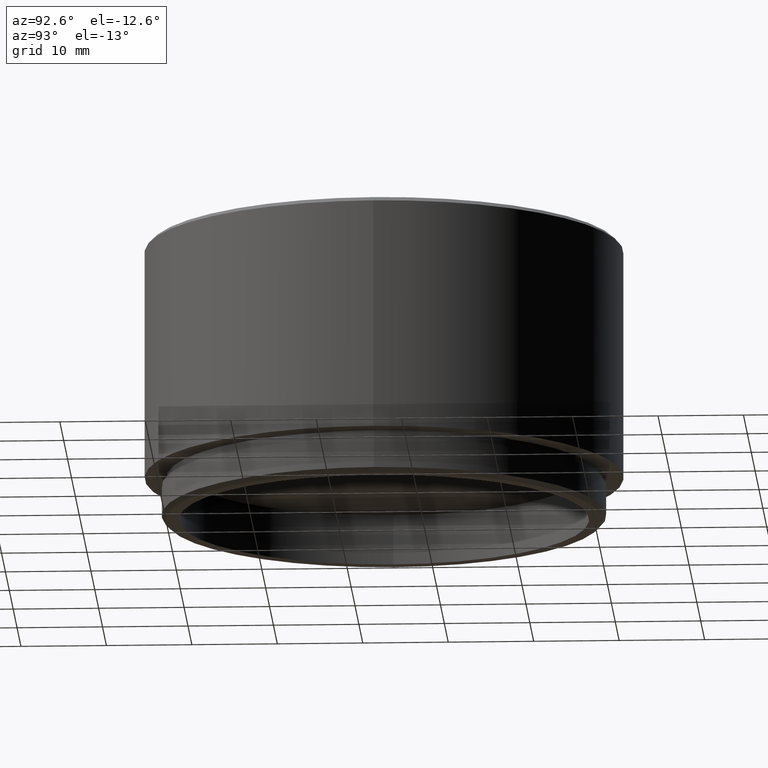
[diagram: clean part render]
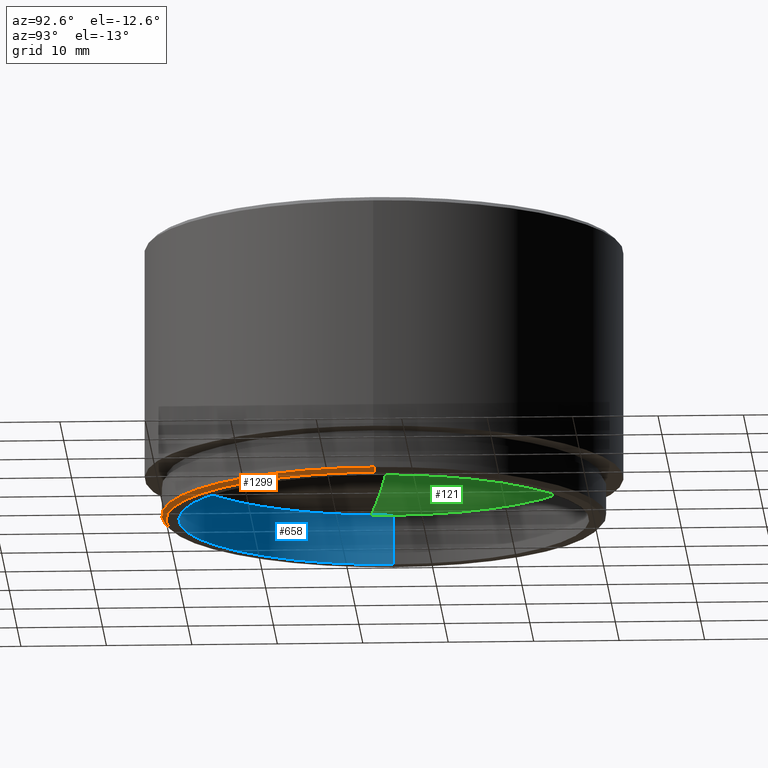
[diagram: same view with three faces highlighted in distinct colors, each labeled with its STEP entity id]
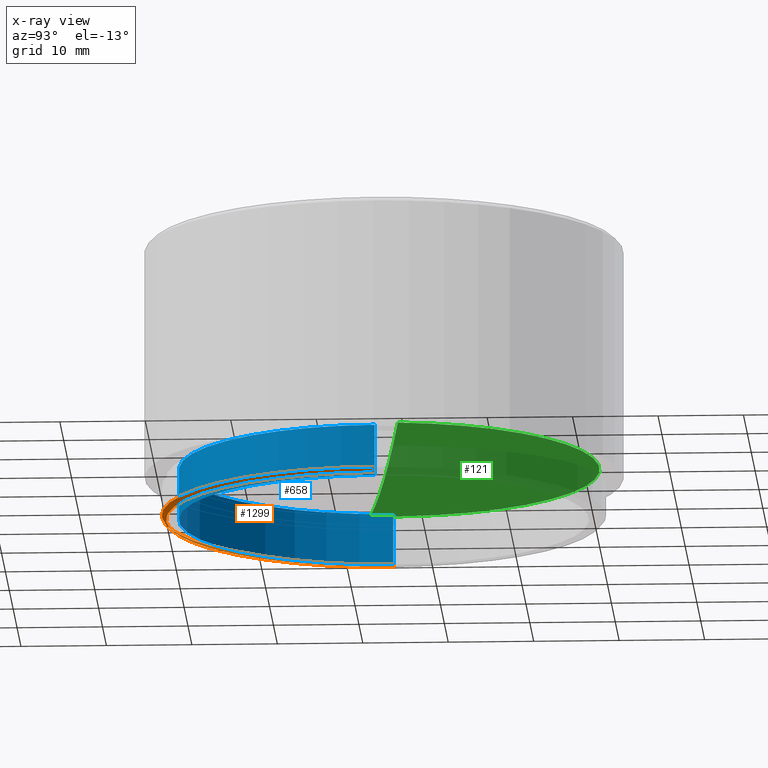
[diagram: x-ray of the same camera — body ghosted, the three highlighted faces saturated]
A machine part, auxiliary view with three faces highlighted in distinct colors.
The next image is the same camera in x-ray (body ghosted, the three faces saturated) — at least one of them is partly hidden behind the body in this view.
Their STEP definitions:

[orange] entity #1299 — the highlighted conical surface has half-angle 45 deg.
#5 = FACE_OUTER_BOUND ( 'NONE', #1694, .T. ) ;
#21 = EDGE_CURVE ( 'NONE', #1341, #1531, #87, .T. ) ;
#24 = CARTESIAN_POINT ( 'NONE',  ( 26.00000000000000355, 3.184081677783118585E-15, 0.4999999999999970024 ) ) ;
#50 = CARTESIAN_POINT ( 'NONE',  ( 0.000000000000000000, 0.000000000000000000, 0.000000000000000000 ) ) ;
#87 = CIRCLE ( 'NONE', #1022, 26.00000000000000355 ) ;
#100 = CARTESIAN_POINT ( 'NONE',  ( -26.00000000000000355, 0.000000000000000000, 0.4999999999999970024 ) ) ;
#182 = DIRECTION ( 'NONE',  ( -0.7071067811865500152, 8.659560562354962440E-17, 0.7071067811865451302 ) ) ;
#187 = DIRECTION ( 'NONE',  ( -0.000000000000000000, -0.000000000000000000, -1.000000000000000000 ) ) ;
#278 = EDGE_CURVE ( 'NONE', #1605, #1237, #293, .T. ) ;
#293 = CIRCLE ( 'NONE', #1251, 25.50000000000000355 ) ;
#332 = CONICAL_SURFACE ( 'NONE', #1426, 25.50000000000000355, 0.7853981633974517207 ) ;
#376 = CARTESIAN_POINT ( 'NONE',  ( 0.000000000000000000, 0.000000000000000000, 0.000000000000000000 ) ) ;
#495 = CARTESIAN_POINT ( 'NONE',  ( 0.000000000000000000, 0.000000000000000000, 0.4999999999999970024 ) ) ;
#514 = ORIENTED_EDGE ( 'NONE', *, *, #21, .F. ) ;
#580 = EDGE_CURVE ( 'NONE', #1605, #1531, #1332, .T. ) ;
#745 = LINE ( 'NONE', #1274, #1197 ) ;
#760 = ORIENTED_EDGE ( 'NONE', *, *, #580, .T. ) ;
#761 = EDGE_CURVE ( 'NONE', #1237, #1341, #745, .T. ) ;
#794 = DIRECTION ( 'NONE',  ( 0.000000000000000000, 0.000000000000000000, 1.000000000000000000 ) ) ;
#875 = VECTOR ( 'NONE', #1734, 1000.000000000000114 ) ;
#896 = CARTESIAN_POINT ( 'NONE',  ( 25.50000000000000355, 0.000000000000000000, 0.000000000000000000 ) ) ;
#914 = ORIENTED_EDGE ( 'NONE', *, *, #761, .F. ) ;
#931 = DIRECTION ( 'NONE',  ( 1.000000000000000000, 0.000000000000000000, 0.000000000000000000 ) ) ;
#1022 = AXIS2_PLACEMENT_3D ( 'NONE', #495, #794, #1335 ) ;
#1132 = ORIENTED_EDGE ( 'NONE', *, *, #278, .F. ) ;
#1197 = VECTOR ( 'NONE', #182, 1000.000000000000114 ) ;
#1203 = CARTESIAN_POINT ( 'NONE',  ( 25.50000000000000355, 0.000000000000000000, 0.000000000000000000 ) ) ;
#1234 = DIRECTION ( 'NONE',  ( 0.000000000000000000, 0.000000000000000000, 1.000000000000000000 ) ) ;
#1237 = VERTEX_POINT ( 'NONE', #1571 ) ;
#1251 = AXIS2_PLACEMENT_3D ( 'NONE', #50, #187, #1306 ) ;
#1274 = CARTESIAN_POINT ( 'NONE',  ( -25.50000000000000355, 3.122849337825751011E-15, 0.000000000000000000 ) ) ;
#1299 = ADVANCED_FACE ( 'NONE', ( #5 ), #332, .T. ) ;
#1306 = DIRECTION ( 'NONE',  ( 1.000000000000000000, 0.000000000000000000, 0.000000000000000000 ) ) ;
#1332 = LINE ( 'NONE', #1203, #875 ) ;
#1335 = DIRECTION ( 'NONE',  ( 1.000000000000000000, 0.000000000000000000, 0.000000000000000000 ) ) ;
#1341 = VERTEX_POINT ( 'NONE', #100 ) ;
#1426 = AXIS2_PLACEMENT_3D ( 'NONE', #376, #1234, #931 ) ;
#1531 = VERTEX_POINT ( 'NONE', #24 ) ;
#1571 = CARTESIAN_POINT ( 'NONE',  ( -25.50000000000000355, 3.153465507804434798E-15, 0.000000000000000000 ) ) ;
#1605 = VERTEX_POINT ( 'NONE', #896 ) ;
#1694 = EDGE_LOOP ( 'NONE', ( #914, #1132, #760, #514 ) ) ;
#1734 = DIRECTION ( 'NONE',  ( 0.7071067811865500152, 0.000000000000000000, 0.7071067811865451302 ) ) ;

[blue] entity #658 — the highlighted cylindrical surface (partial cylindrical patch) has radius 24 mm, axis along (-0, -0, -1).
#7 = ORIENTED_EDGE ( 'NONE', *, *, #845, .F. ) ;
#10 = VERTEX_POINT ( 'NONE', #1124 ) ;
#28 = ORIENTED_EDGE ( 'NONE', *, *, #1582, .T. ) ;
#220 = CARTESIAN_POINT ( 'NONE',  ( 24.00000000000000355, 2.939152317953648289E-15, 32.50000000000000000 ) ) ;
#234 = CARTESIAN_POINT ( 'NONE',  ( -24.00000000000000355, 0.000000000000000000, 32.50000000000000000 ) ) ;
#253 = DIRECTION ( 'NONE',  ( -0.000000000000000000, -0.000000000000000000, -1.000000000000000000 ) ) ;
#322 = AXIS2_PLACEMENT_3D ( 'NONE', #849, #712, #829 ) ;
#347 = EDGE_LOOP ( 'NONE', ( #28, #675, #1724, #7 ) ) ;
#546 = CARTESIAN_POINT ( 'NONE',  ( 24.00000000000000355, 2.939152317953648289E-15, 0.000000000000000000 ) ) ;
#548 = FACE_OUTER_BOUND ( 'NONE', #347, .T. ) ;
#556 = CIRCLE ( 'NONE', #902, 24.00000000000000355 ) ;
#594 = VECTOR ( 'NONE', #253, 1000.000000000000000 ) ;
#658 = ADVANCED_FACE ( 'NONE', ( #548 ), #1104, .F. ) ;
#675 = ORIENTED_EDGE ( 'NONE', *, *, #1171, .T. ) ;
#699 = EDGE_CURVE ( 'NONE', #776, #977, #556, .T. ) ;
#712 = DIRECTION ( 'NONE',  ( -0.000000000000000000, -0.000000000000000000, -1.000000000000000000 ) ) ;
#721 = CARTESIAN_POINT ( 'NONE',  ( 0.000000000000000000, 0.000000000000000000, 0.000000000000000000 ) ) ;
#776 = VERTEX_POINT ( 'NONE', #1169 ) ;
#829 = DIRECTION ( 'NONE',  ( -1.000000000000000000, 0.000000000000000000, 0.000000000000000000 ) ) ;
#845 = EDGE_CURVE ( 'NONE', #1025, #776, #1487, .T. ) ;
#849 = CARTESIAN_POINT ( 'NONE',  ( 0.000000000000000000, 0.000000000000000000, 32.50000000000000000 ) ) ;
#880 = DIRECTION ( 'NONE',  ( 1.000000000000000000, 0.000000000000000000, 0.000000000000000000 ) ) ;
#883 = AXIS2_PLACEMENT_3D ( 'NONE', #1716, #1691, #880 ) ;
#897 = DIRECTION ( 'NONE',  ( -0.000000000000000000, -0.000000000000000000, -1.000000000000000000 ) ) ;
#902 = AXIS2_PLACEMENT_3D ( 'NONE', #721, #1731, #1406 ) ;
#977 = VERTEX_POINT ( 'NONE', #546 ) ;
#1005 = CARTESIAN_POINT ( 'NONE',  ( -24.00000000000000355, 0.000000000000000000, 6.000000000000001776 ) ) ;
#1025 = VERTEX_POINT ( 'NONE', #1005 ) ;
#1104 = CYLINDRICAL_SURFACE ( 'NONE', #322, 24.00000000000000355 ) ;
#1124 = CARTESIAN_POINT ( 'NONE',  ( 24.00000000000000355, 2.939152317953648289E-15, 6.000000000000001776 ) ) ;
#1169 = CARTESIAN_POINT ( 'NONE',  ( -24.00000000000000355, 0.000000000000000000, 0.000000000000000000 ) ) ;
#1171 = EDGE_CURVE ( 'NONE', #10, #977, #1562, .T. ) ;
#1288 = CIRCLE ( 'NONE', #883, 24.00000000000000355 ) ;
#1406 = DIRECTION ( 'NONE',  ( 1.000000000000000000, 0.000000000000000000, 0.000000000000000000 ) ) ;
#1487 = LINE ( 'NONE', #234, #594 ) ;
#1562 = LINE ( 'NONE', #220, #1727 ) ;
#1582 = EDGE_CURVE ( 'NONE', #1025, #10, #1288, .T. ) ;
#1691 = DIRECTION ( 'NONE',  ( 0.000000000000000000, 0.000000000000000000, 1.000000000000000000 ) ) ;
#1716 = CARTESIAN_POINT ( 'NONE',  ( 0.000000000000000000, 0.000000000000000000, 6.000000000000001776 ) ) ;
#1724 = ORIENTED_EDGE ( 'NONE', *, *, #699, .F. ) ;
#1727 = VECTOR ( 'NONE', #897, 1000.000000000000000 ) ;
#1731 = DIRECTION ( 'NONE',  ( 0.000000000000000000, 0.000000000000000000, 1.000000000000000000 ) ) ;

[green] entity #121 — the highlighted toroidal blend (fillet) surface has major radius 0.2161 mm and minor (blend) radius 247.7 mm.
#83 = CARTESIAN_POINT ( 'NONE',  ( 25.22053829402559799, 0.000000000000000000, -13.69056784823854045 ) ) ;
#99 = DIRECTION ( 'NONE',  ( 0.000000000000000000, 0.000000000000000000, 1.000000000000000000 ) ) ;
#117 = DIRECTION ( 'NONE',  ( 1.000000000000000000, 0.000000000000000000, 0.000000000000000000 ) ) ;
#121 = ADVANCED_FACE ( 'NONE', ( #1625 ), #775, .T. ) ;
#171 = ORIENTED_EDGE ( 'NONE', *, *, #864, .T. ) ;
#285 = EDGE_CURVE ( 'NONE', #1387, #1194, #1191, .T. ) ;
#399 = DIRECTION ( 'NONE',  ( 0.000000000000000000, 0.000000000000000000, -1.000000000000000000 ) ) ;
#476 = AXIS2_PLACEMENT_3D ( 'NONE', #1339, #399, #117 ) ;
#523 = AXIS2_PLACEMENT_3D ( 'NONE', #1011, #1708, #879 ) ;
#550 = ORIENTED_EDGE ( 'NONE', *, *, #285, .F. ) ;
#565 = CARTESIAN_POINT ( 'NONE',  ( 0.2161388566970964820, -2.646937590254675351E-17, 232.6999057004155134 ) ) ;
#578 = ORIENTED_EDGE ( 'NONE', *, *, #1530, .T. ) ;
#655 = DIRECTION ( 'NONE',  ( -1.000000000000000000, 0.000000000000000000, 0.000000000000000000 ) ) ;
#731 = VERTEX_POINT ( 'NONE', #997 ) ;
#775 = TOROIDAL_SURFACE ( 'NONE', #1021, -0.2161388566970964820, 247.7000000000000171 ) ;
#839 = EDGE_LOOP ( 'NONE', ( #550, #578, #171 ) ) ;
#856 = DIRECTION ( 'NONE',  ( -1.000000000000000000, 1.224646799147351975E-16, 0.000000000000000000 ) ) ;
#864 = EDGE_CURVE ( 'NONE', #731, #1194, #1337, .T. ) ;
#879 = DIRECTION ( 'NONE',  ( 0.000000000000000000, 0.000000000000000000, -1.000000000000000000 ) ) ;
#923 = CARTESIAN_POINT ( 'NONE',  ( 0.000000000000000000, 0.000000000000000000, 232.6999057004155134 ) ) ;
#952 = CARTESIAN_POINT ( 'NONE',  ( -1.393199791643871936E-14, 0.000000000000000000, -15.00000000000000000 ) ) ;
#997 = CARTESIAN_POINT ( 'NONE',  ( -25.22053829402559799, 3.099614009644725013E-15, -13.69056784823854045 ) ) ;
#1011 = CARTESIAN_POINT ( 'NONE',  ( -0.2161388566970964820, 0.000000000000000000, 232.6999057004155134 ) ) ;
#1021 = AXIS2_PLACEMENT_3D ( 'NONE', #923, #99, #655 ) ;
#1111 = DIRECTION ( 'NONE',  ( 1.224646799147351975E-16, 1.000000000000000000, 0.000000000000000000 ) ) ;
#1122 = CIRCLE ( 'NONE', #1652, 247.7000000000000171 ) ;
#1191 = CIRCLE ( 'NONE', #523, 247.7000000000000171 ) ;
#1194 = VERTEX_POINT ( 'NONE', #83 ) ;
#1337 = CIRCLE ( 'NONE', #476, 25.22053829402559799 ) ;
#1339 = CARTESIAN_POINT ( 'NONE',  ( 0.000000000000000000, 0.000000000000000000, -13.69056784823854045 ) ) ;
#1387 = VERTEX_POINT ( 'NONE', #952 ) ;
#1530 = EDGE_CURVE ( 'NONE', #1387, #731, #1122, .T. ) ;
#1625 = FACE_OUTER_BOUND ( 'NONE', #839, .T. ) ;
#1652 = AXIS2_PLACEMENT_3D ( 'NONE', #565, #1111, #856 ) ;
#1708 = DIRECTION ( 'NONE',  ( 0.000000000000000000, -1.000000000000000000, 0.000000000000000000 ) ) ;